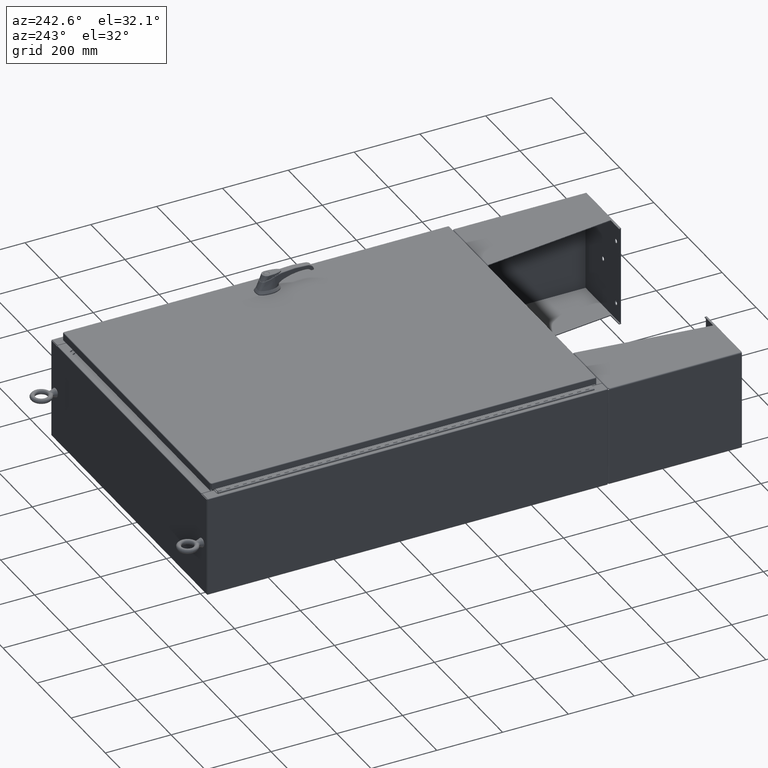
[diagram: clean part render]
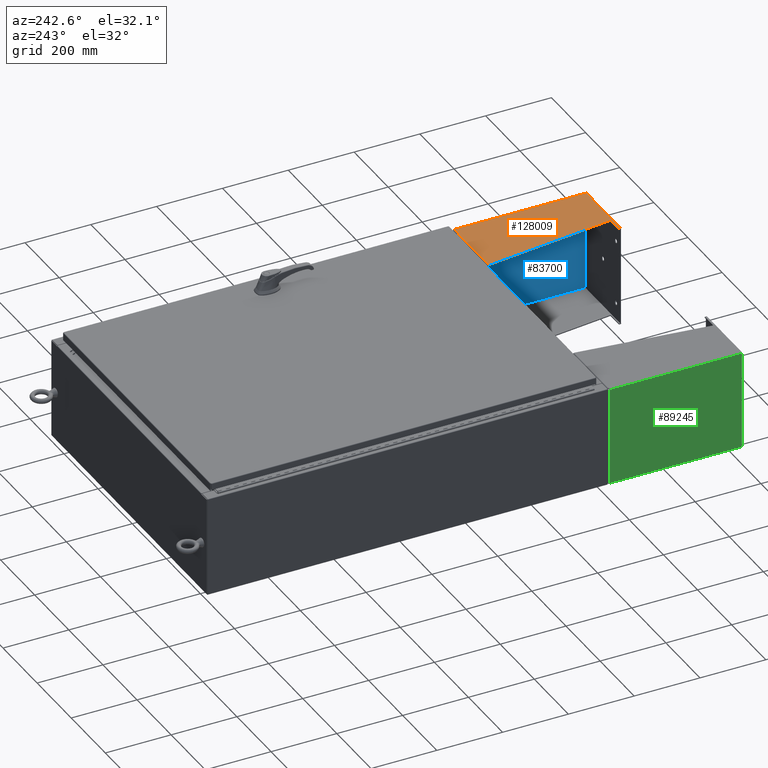
[diagram: same view with three faces highlighted in distinct colors, each labeled with its STEP entity id]
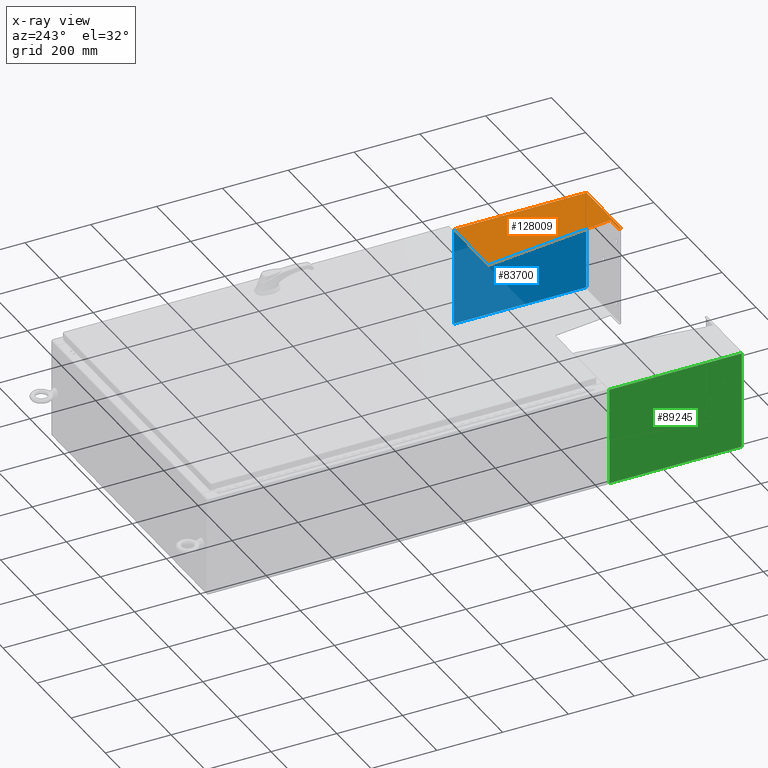
[diagram: x-ray of the same camera — body ghosted, the three highlighted faces saturated]
A machine part, auxiliary view with three faces highlighted in distinct colors.
The next image is the same camera in x-ray (body ghosted, the three faces saturated) — at least one of them is partly hidden behind the body in this view.
Their STEP definitions:

[orange] entity #128009 — the highlighted planar face has unit normal (-0, -0, -1).
#2268 = VERTEX_POINT ( 'NONE', #39058 ) ;
#3398 = DIRECTION ( 'NONE',  ( 3.550958521948298200E-015, 0.0000000000000000000, 1.000000000000000000 ) ) ;
#3908 = ORIENTED_EDGE ( 'NONE', *, *, #10160, .F. ) ;
#5866 = FACE_OUTER_BOUND ( 'NONE', #23664, .T. ) ;
#10160 = EDGE_CURVE ( 'NONE', #2268, #26961, #30270, .T. ) ;
#10242 = LINE ( 'NONE', #62286, #129850 ) ;
#12303 = CARTESIAN_POINT ( 'NONE',  ( 6.000000000000029300, -7.749999999999999100, 8.001000000000031400 ) ) ;
#16228 = EDGE_CURVE ( 'NONE', #36128, #26961, #24986, .T. ) ;
#17358 = CARTESIAN_POINT ( 'NONE',  ( 5.999999999999999100, -7.999999999999999100, 0.03900000000001453000 ) ) ;
#21102 = DIRECTION ( 'NONE',  ( 0.0000000000000000000, 0.0000000000000000000, 1.000000000000000000 ) ) ;
#23421 = LINE ( 'NONE', #17358, #104842 ) ;
#23664 = EDGE_LOOP ( 'NONE', ( #38884, #120748, #87951, #123379, #105865, #3908 ) ) ;
#24986 = LINE ( 'NONE', #63282, #116370 ) ;
#26230 = DIRECTION ( 'NONE',  ( 0.0000000000000000000, -1.000000000000000000, 0.0000000000000000000 ) ) ;
#26254 = LINE ( 'NONE', #38792, #135836 ) ;
#26961 = VERTEX_POINT ( 'NONE', #90291 ) ;
#30270 = LINE ( 'NONE', #45074, #80015 ) ;
#32850 = VERTEX_POINT ( 'NONE', #134992 ) ;
#35059 = PLANE ( 'NONE',  #60821 ) ;
#36128 = VERTEX_POINT ( 'NONE', #133405 ) ;
#38792 = CARTESIAN_POINT ( 'NONE',  ( 6.000000000000029300, -7.749999999999999100, 8.001000000000015400 ) ) ;
#38884 = ORIENTED_EDGE ( 'NONE', *, *, #72379, .F. ) ;
#39058 = CARTESIAN_POINT ( 'NONE',  ( 6.000000000000021300, -7.749999999999999100, 6.052216497445950700 ) ) ;
#41752 = VERTEX_POINT ( 'NONE', #12303 ) ;
#45074 = CARTESIAN_POINT ( 'NONE',  ( 6.000000000000022200, -7.749999999999999100, 6.052216497445950700 ) ) ;
#53121 = VECTOR ( 'NONE', #26230, 39.37007874015748100 ) ;
#56338 = CARTESIAN_POINT ( 'NONE',  ( 6.000000000000029300, -7.999999999999999100, 8.001000000000015400 ) ) ;
#56421 = LINE ( 'NONE', #57738, #53121 ) ;
#57738 = CARTESIAN_POINT ( 'NONE',  ( 6.000000000000029300, -7.999999999999999100, 8.001000000000015400 ) ) ;
#60821 = AXIS2_PLACEMENT_3D ( 'NONE', #56338, #67016, #3398 ) ;
#62286 = CARTESIAN_POINT ( 'NONE',  ( 6.000000000000029300, -7.999999999999999100, 8.001000000000015400 ) ) ;
#63282 = CARTESIAN_POINT ( 'NONE',  ( 6.000000000000013300, 7.857000000000001100, 0.03900000000001561900 ) ) ;
#67016 = DIRECTION ( 'NONE',  ( -1.000000000000000000, 0.0000000000000000000, 3.550958521948298200E-015 ) ) ;
#69291 = EDGE_CURVE ( 'NONE', #36128, #32850, #23421, .T. ) ;
#72379 = EDGE_CURVE ( 'NONE', #41752, #2268, #26254, .T. ) ;
#72959 = DIRECTION ( 'NONE',  ( -3.550958521948298200E-015, 0.0000000000000000000, -1.000000000000000000 ) ) ;
#80015 = VECTOR ( 'NONE', #119329, 39.37007874015748100 ) ;
#80487 = DIRECTION ( 'NONE',  ( -0.0000000000000000000, -1.000000000000000000, 0.0000000000000000000 ) ) ;
#87951 = ORIENTED_EDGE ( 'NONE', *, *, #90515, .T. ) ;
#90291 = CARTESIAN_POINT ( 'NONE',  ( 6.000000000000013300, 7.857000000000001100, 8.001000000000013700 ) ) ;
#90515 = EDGE_CURVE ( 'NONE', #103290, #32850, #10242, .T. ) ;
#93605 = EDGE_CURVE ( 'NONE', #41752, #103290, #56421, .T. ) ;
#98048 = CARTESIAN_POINT ( 'NONE',  ( 6.000000000000029300, -7.999999999999999100, 8.001000000000015400 ) ) ;
#103290 = VERTEX_POINT ( 'NONE', #98048 ) ;
#104842 = VECTOR ( 'NONE', #80487, 39.37007874015748100 ) ;
#105865 = ORIENTED_EDGE ( 'NONE', *, *, #16228, .T. ) ;
#116370 = VECTOR ( 'NONE', #21102, 39.37007874015748100 ) ;
#119329 = DIRECTION ( 'NONE',  ( 4.399772607369798900E-016, 0.9922942345449394800, 0.1239038017531047700 ) ) ;
#120748 = ORIENTED_EDGE ( 'NONE', *, *, #93605, .T. ) ;
#123379 = ORIENTED_EDGE ( 'NONE', *, *, #69291, .F. ) ;
#123746 = DIRECTION ( 'NONE',  ( -3.550958521948298200E-015, -0.0000000000000000000, -1.000000000000000000 ) ) ;
#128009 = ADVANCED_FACE ( 'NONE', ( #5866 ), #35059, .F. ) ;
#129850 = VECTOR ( 'NONE', #72959, 39.37007874015748100 ) ;
#133405 = CARTESIAN_POINT ( 'NONE',  ( 6.000000000000013300, 7.857000000000001100, 0.03900000000001453000 ) ) ;
#134992 = CARTESIAN_POINT ( 'NONE',  ( 6.000000000000000900, -7.999999999999993800, 0.03899999999999890400 ) ) ;
#135836 = VECTOR ( 'NONE', #123746, 39.37007874015748100 ) ;

[blue] entity #83700 — the highlighted planar face has unit normal (1, 0, -0).
#1101 = LINE ( 'NONE', #88710, #57605 ) ;
#1772 = EDGE_CURVE ( 'NONE', #128085, #19256, #122769, .T. ) ;
#3468 = CARTESIAN_POINT ( 'NONE',  ( 5.999999999999996400, 8.000000000000001800, 0.0000000000000000000 ) ) ;
#14404 = DIRECTION ( 'NONE',  ( -0.0000000000000000000, -1.000000000000000000, -0.0000000000000000000 ) ) ;
#19256 = VERTEX_POINT ( 'NONE', #56498 ) ;
#29753 = EDGE_CURVE ( 'NONE', #35841, #19256, #1101, .T. ) ;
#32709 = VECTOR ( 'NONE', #105928, 39.37007874015748100 ) ;
#35601 = DIRECTION ( 'NONE',  ( -1.000000000000000000, 0.0000000000000000000, -0.0000000000000000000 ) ) ;
#35841 = VERTEX_POINT ( 'NONE', #76765 ) ;
#42307 = CARTESIAN_POINT ( 'NONE',  ( -5.857000000000000200, 7.857000000000001100, 1.365923996832131600E-016 ) ) ;
#50050 = CARTESIAN_POINT ( 'NONE',  ( -5.857000000000000200, -7.999999999999999100, 1.365923996832131600E-016 ) ) ;
#50749 = AXIS2_PLACEMENT_3D ( 'NONE', #3468, #99174, #35601 ) ;
#55900 = ORIENTED_EDGE ( 'NONE', *, *, #136854, .F. ) ;
#56498 = CARTESIAN_POINT ( 'NONE',  ( 5.857000000000000200, -7.999999999999997300, 1.365923996832131600E-016 ) ) ;
#57605 = VECTOR ( 'NONE', #14404, 39.37007874015748100 ) ;
#60668 = DIRECTION ( 'NONE',  ( -0.0000000000000000000, 1.000000000000000000, -0.0000000000000000000 ) ) ;
#76765 = CARTESIAN_POINT ( 'NONE',  ( 5.857000000000000200, 7.857000000000001100, 1.365923996832131600E-016 ) ) ;
#83230 = EDGE_CURVE ( 'NONE', #128085, #95723, #135640, .T. ) ;
#83700 = ADVANCED_FACE ( 'NONE', ( #127279 ), #88501, .F. ) ;
#88501 = PLANE ( 'NONE',  #50749 ) ;
#88710 = CARTESIAN_POINT ( 'NONE',  ( 5.857000000000000200, 8.000000000000001800, 1.365923996832131600E-016 ) ) ;
#94555 = VECTOR ( 'NONE', #121982, 39.37007874015748100 ) ;
#95723 = VERTEX_POINT ( 'NONE', #133934 ) ;
#99174 = DIRECTION ( 'NONE',  ( 0.0000000000000000000, 0.0000000000000000000, -1.000000000000000000 ) ) ;
#99563 = CARTESIAN_POINT ( 'NONE',  ( -5.857000000000000200, -8.000000000000000000, 1.365923996832131600E-016 ) ) ;
#103139 = EDGE_LOOP ( 'NONE', ( #55900, #107038, #136947, #114101 ) ) ;
#105928 = DIRECTION ( 'NONE',  ( 1.000000000000000000, 0.0000000000000000000, 0.0000000000000000000 ) ) ;
#107038 = ORIENTED_EDGE ( 'NONE', *, *, #83230, .F. ) ;
#114101 = ORIENTED_EDGE ( 'NONE', *, *, #29753, .F. ) ;
#117377 = LINE ( 'NONE', #42307, #32709 ) ;
#121982 = DIRECTION ( 'NONE',  ( 1.000000000000000000, 0.0000000000000000000, 0.0000000000000000000 ) ) ;
#122769 = LINE ( 'NONE', #127072, #94555 ) ;
#127072 = CARTESIAN_POINT ( 'NONE',  ( -6.000000000000000900, -7.999999999999999100, 0.0000000000000000000 ) ) ;
#127279 = FACE_OUTER_BOUND ( 'NONE', #103139, .T. ) ;
#128085 = VERTEX_POINT ( 'NONE', #99563 ) ;
#132311 = VECTOR ( 'NONE', #60668, 39.37007874015748100 ) ;
#133934 = CARTESIAN_POINT ( 'NONE',  ( -5.857000000000000200, 7.857000000000001100, 1.365923996832131600E-016 ) ) ;
#135640 = LINE ( 'NONE', #50050, #132311 ) ;
#136854 = EDGE_CURVE ( 'NONE', #95723, #35841, #117377, .T. ) ;
#136947 = ORIENTED_EDGE ( 'NONE', *, *, #1772, .T. ) ;

[green] entity #89245 — the highlighted planar face has unit normal (-1, 0, -0).
#3701 = VERTEX_POINT ( 'NONE', #86019 ) ;
#4425 = VECTOR ( 'NONE', #44870, 39.37007874015748100 ) ;
#5201 = EDGE_CURVE ( 'NONE', #3701, #40919, #77294, .T. ) ;
#13040 = ORIENTED_EDGE ( 'NONE', *, *, #5201, .T. ) ;
#20430 = ORIENTED_EDGE ( 'NONE', *, *, #103546, .T. ) ;
#20731 = VECTOR ( 'NONE', #61684, 39.37007874015748100 ) ;
#22443 = PLANE ( 'NONE',  #125036 ) ;
#24058 = LINE ( 'NONE', #51068, #20731 ) ;
#25185 = LINE ( 'NONE', #89237, #106594 ) ;
#33130 = CARTESIAN_POINT ( 'NONE',  ( 5.999999999999996400, 8.000000000000001800, -0.1039999999999999800 ) ) ;
#34234 = CARTESIAN_POINT ( 'NONE',  ( -6.000000000000000900, -7.999999999999999100, -0.1039999999999999800 ) ) ;
#35298 = VERTEX_POINT ( 'NONE', #72830 ) ;
#36332 = DIRECTION ( 'NONE',  ( -0.0000000000000000000, -1.000000000000000000, -0.0000000000000000000 ) ) ;
#40919 = VERTEX_POINT ( 'NONE', #88518 ) ;
#44870 = DIRECTION ( 'NONE',  ( 1.000000000000000000, 0.0000000000000000000, 0.0000000000000000000 ) ) ;
#50692 = CARTESIAN_POINT ( 'NONE',  ( 5.857000000000000200, -7.999999999999989300, -0.1039999999999998600 ) ) ;
#51068 = CARTESIAN_POINT ( 'NONE',  ( -5.857000000000000200, 7.857000000000001100, -0.1039999999999998600 ) ) ;
#53442 = EDGE_LOOP ( 'NONE', ( #13040, #20430, #76138, #119100 ) ) ;
#54402 = DIRECTION ( 'NONE',  ( -1.000000000000000000, 0.0000000000000000000, -0.0000000000000000000 ) ) ;
#61684 = DIRECTION ( 'NONE',  ( 1.000000000000000000, 0.0000000000000000000, 0.0000000000000000000 ) ) ;
#72830 = CARTESIAN_POINT ( 'NONE',  ( 5.857000000000000200, 7.857000000000001100, -0.1039999999999998600 ) ) ;
#73958 = VECTOR ( 'NONE', #119571, 39.37007874015748100 ) ;
#76138 = ORIENTED_EDGE ( 'NONE', *, *, #76988, .T. ) ;
#76988 = EDGE_CURVE ( 'NONE', #35298, #110851, #25185, .T. ) ;
#77294 = LINE ( 'NONE', #104400, #73958 ) ;
#78518 = FACE_OUTER_BOUND ( 'NONE', #53442, .T. ) ;
#86019 = CARTESIAN_POINT ( 'NONE',  ( -5.857000000000000200, -8.000000000000000000, -0.1039999999999998600 ) ) ;
#88518 = CARTESIAN_POINT ( 'NONE',  ( -5.857000000000000200, 7.856999999999998400, -0.1039999999999999000 ) ) ;
#89221 = LINE ( 'NONE', #34234, #4425 ) ;
#89237 = CARTESIAN_POINT ( 'NONE',  ( 5.857000000000000200, 8.000000000000001800, -0.1039999999999998600 ) ) ;
#89245 = ADVANCED_FACE ( 'NONE', ( #78518 ), #22443, .T. ) ;
#103546 = EDGE_CURVE ( 'NONE', #40919, #35298, #24058, .T. ) ;
#104400 = CARTESIAN_POINT ( 'NONE',  ( -5.857000000000000200, -7.999999999999999100, -0.1039999999999998600 ) ) ;
#106594 = VECTOR ( 'NONE', #36332, 39.37007874015748100 ) ;
#110851 = VERTEX_POINT ( 'NONE', #50692 ) ;
#111453 = EDGE_CURVE ( 'NONE', #3701, #110851, #89221, .T. ) ;
#118037 = DIRECTION ( 'NONE',  ( 0.0000000000000000000, 0.0000000000000000000, -1.000000000000000000 ) ) ;
#119100 = ORIENTED_EDGE ( 'NONE', *, *, #111453, .F. ) ;
#119571 = DIRECTION ( 'NONE',  ( -0.0000000000000000000, 1.000000000000000000, -0.0000000000000000000 ) ) ;
#125036 = AXIS2_PLACEMENT_3D ( 'NONE', #33130, #118037, #54402 ) ;